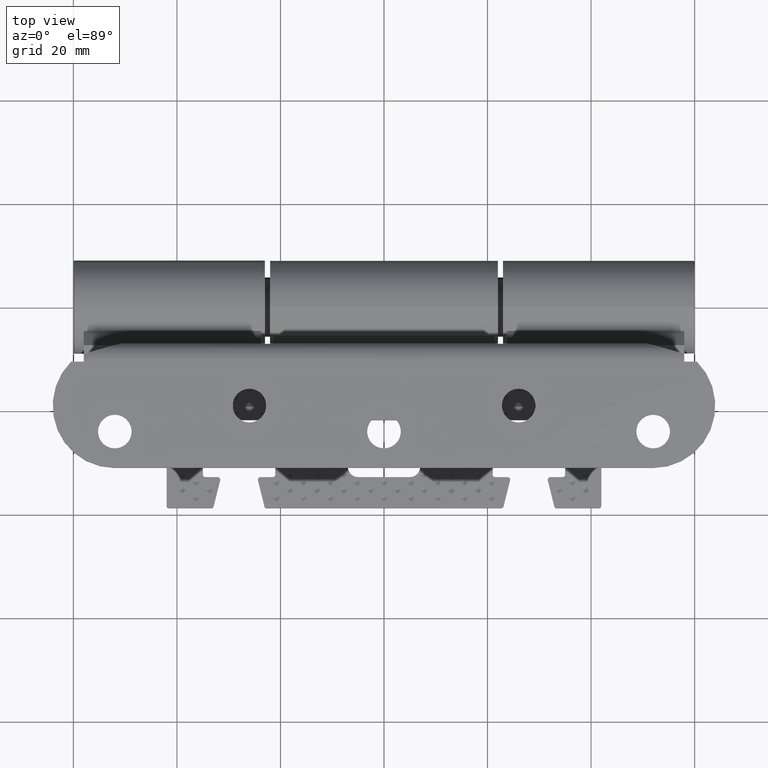
[diagram: clean part render]
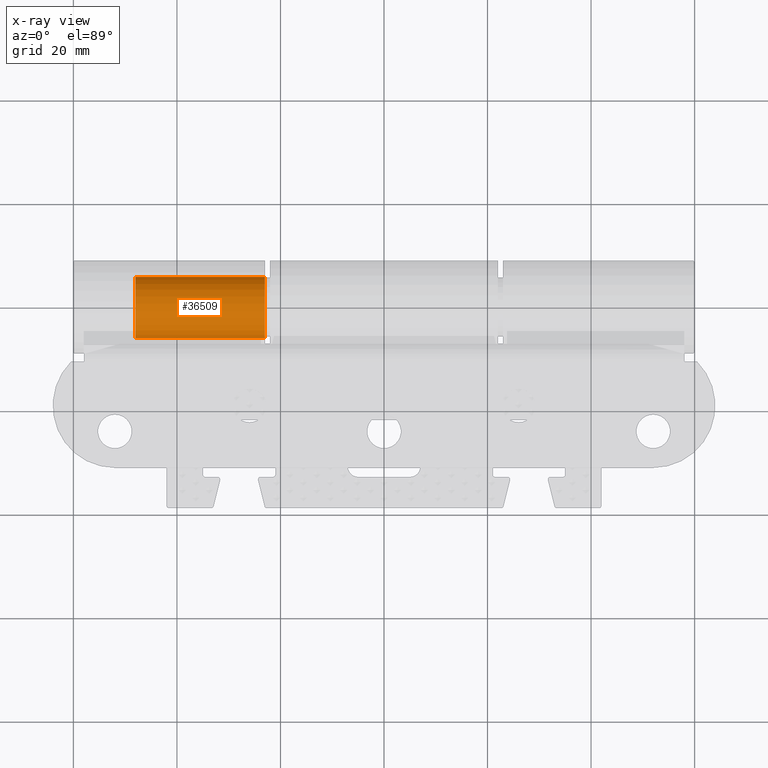
[diagram: x-ray — body ghosted, one internal face saturated and labeled with its STEP entity id]
A machine part, top view, then the same camera in x-ray: the body is ghosted and one INTERNAL B-rep face — a face not visible from any outside direction — is saturated and labeled: STEP entity #36509.
In plain terms, the highlighted cylindrical surface (edge-blend (fillet) strip) has radius 6 mm, axis along (1, -0, 0).
Its self-contained STEP definition (entity closure, byte-faithful):
#1529 = CARTESIAN_POINT ( 'NONE',  ( 25.00000000000000000, -4.333342374871280669E-31, -6.938893903907228378E-15 ) ) ;
#3799 = CARTESIAN_POINT ( 'NONE',  ( 25.00000000000000000, 7.347880794884120722E-16, -6.000000000000011546 ) ) ;
#4650 = DIRECTION ( 'NONE',  ( -1.000000000000000000, -4.650432772331849413E-32, -1.263828560216439197E-31 ) ) ;
#7357 = DIRECTION ( 'NONE',  ( 2.203093373026480691E-32, 0.000000000000000000, 1.000000000000000000 ) ) ;
#7473 = EDGE_CURVE ( 'NONE', #23243, #20415, #21423, .T. ) ;
#8310 = LINE ( 'NONE', #23190, #21680 ) ;
#10502 = CARTESIAN_POINT ( 'NONE',  ( 1.321856023815889400E-31, 0.000000000000000000, 6.000000000000004441 ) ) ;
#11393 = DIRECTION ( 'NONE',  ( -1.000000000000000000, -4.650432772331849413E-32, -1.263828560216439197E-31 ) ) ;
#12513 = EDGE_LOOP ( 'NONE', ( #34997, #31217, #16528, #34990 ) ) ;
#12617 = DIRECTION ( 'NONE',  ( -1.000000000000000000, -4.650432772331849413E-32, -1.263828560216439197E-31 ) ) ;
#12738 = VERTEX_POINT ( 'NONE', #3799 ) ;
#12762 = DIRECTION ( 'NONE',  ( -1.000000000000000000, -4.650432772331849413E-32, -1.263828560216439197E-31 ) ) ;
#13187 = CIRCLE ( 'NONE', #40448, 6.000000000000004441 ) ;
#14900 = AXIS2_PLACEMENT_3D ( 'NONE', #38697, #12617, #19457 ) ;
#16043 = CYLINDRICAL_SURFACE ( 'NONE', #14900, 6.000000000000004441 ) ;
#16513 = EDGE_CURVE ( 'NONE', #12738, #23243, #23797, .T. ) ;
#16528 = ORIENTED_EDGE ( 'NONE', *, *, #34404, .T. ) ;
#16665 = DIRECTION ( 'NONE',  ( 0.000000000000000000, 0.000000000000000000, 1.000000000000000000 ) ) ;
#19457 = DIRECTION ( 'NONE',  ( 0.000000000000000000, 0.000000000000000000, 1.000000000000000000 ) ) ;
#19941 = FACE_OUTER_BOUND ( 'NONE', #12513, .T. ) ;
#20415 = VERTEX_POINT ( 'NONE', #10502 ) ;
#21423 = LINE ( 'NONE', #36298, #29583 ) ;
#21485 = AXIS2_PLACEMENT_3D ( 'NONE', #1529, #12762, #16665 ) ;
#21680 = VECTOR ( 'NONE', #4650, 1000.000000000000000 ) ;
#23190 = CARTESIAN_POINT ( 'NONE',  ( 25.50000000000000355, 7.347880794884125653E-16, -6.000000000000011546 ) ) ;
#23243 = VERTEX_POINT ( 'NONE', #35050 ) ;
#23797 = CIRCLE ( 'NONE', #21485, 6.000000000000004441 ) ;
#25238 = CARTESIAN_POINT ( 'NONE',  ( 7.703719777548932902E-31, 7.347880794884109875E-16, -6.000000000000000000 ) ) ;
#26865 = DIRECTION ( 'NONE',  ( -1.000000000000000000, -4.650432772331849413E-32, -1.263828560216439197E-31 ) ) ;
#29583 = VECTOR ( 'NONE', #11393, 1000.000000000000000 ) ;
#31217 = ORIENTED_EDGE ( 'NONE', *, *, #40646, .T. ) ;
#34404 = EDGE_CURVE ( 'NONE', #41223, #20415, #13187, .T. ) ;
#34990 = ORIENTED_EDGE ( 'NONE', *, *, #7473, .F. ) ;
#34997 = ORIENTED_EDGE ( 'NONE', *, *, #16513, .F. ) ;
#35050 = CARTESIAN_POINT ( 'NONE',  ( 25.00000000000000000, -4.333342374871280669E-31, 5.999999999999997335 ) ) ;
#36298 = CARTESIAN_POINT ( 'NONE',  ( 25.50000000000000355, 1.444447458290426890E-31, 5.999999999999997335 ) ) ;
#36509 = ADVANCED_FACE ( 'NONE', ( #19941 ), #16043, .F. ) ;
#37589 = CARTESIAN_POINT ( 'NONE',  ( 0.000000000000000000, 0.000000000000000000, 0.000000000000000000 ) ) ;
#38697 = CARTESIAN_POINT ( 'NONE',  ( 25.50000000000000355, 1.444447458290426890E-31, -6.938893903907228378E-15 ) ) ;
#40448 = AXIS2_PLACEMENT_3D ( 'NONE', #37589, #26865, #7357 ) ;
#40646 = EDGE_CURVE ( 'NONE', #12738, #41223, #8310, .T. ) ;
#41223 = VERTEX_POINT ( 'NONE', #25238 ) ;